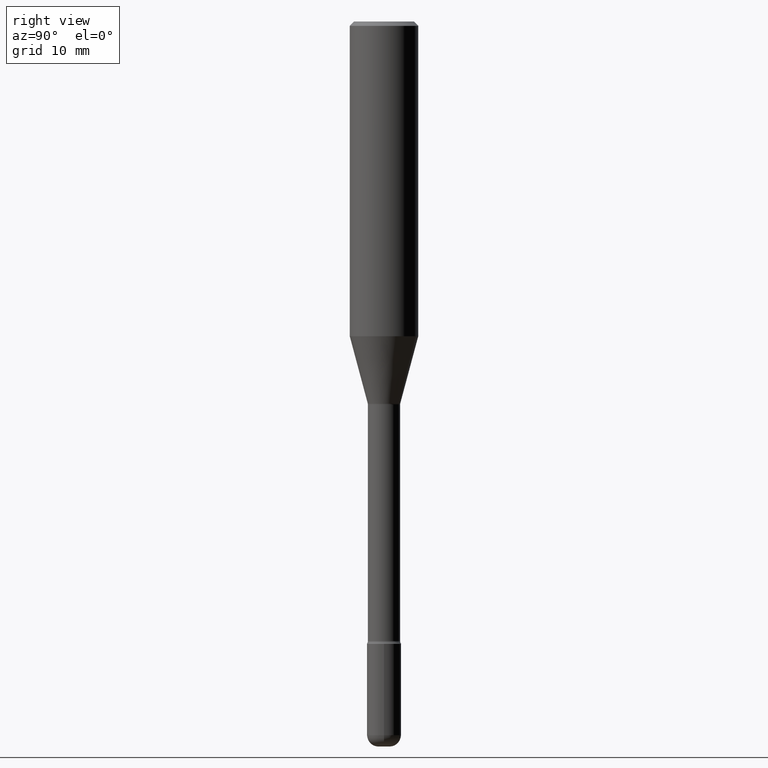
[diagram: clean part render]
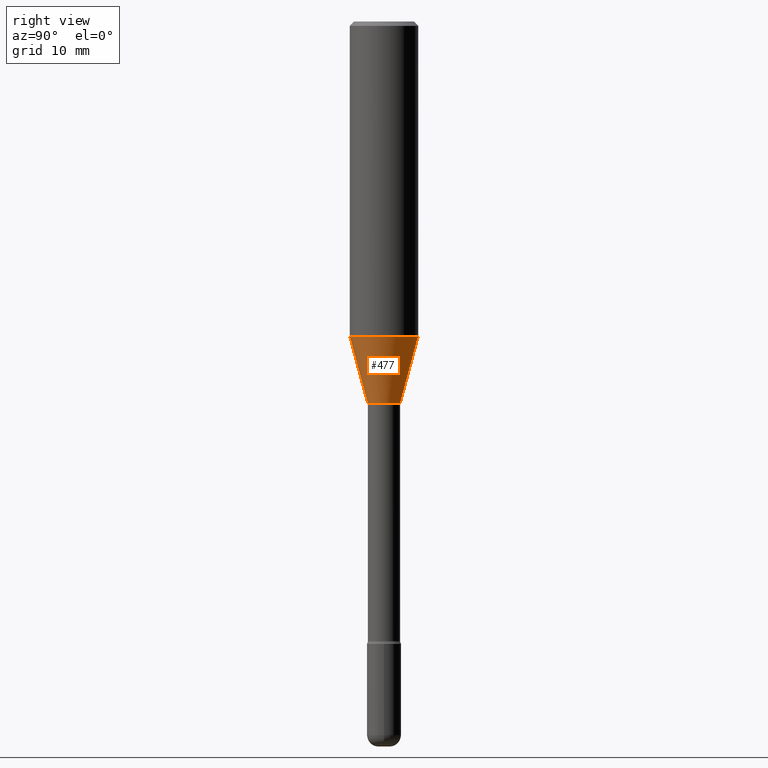
[diagram: same view with one face highlighted and labeled with its STEP entity id]
A machine part, right view. The second image highlights one B-rep face of the part: STEP entity #477.
In plain terms, the highlighted conical surface has half-angle 15 deg.
Its self-contained STEP definition (entity closure, byte-faithful):
#10 = ORIENTED_EDGE ( 'NONE', *, *, #204, .F. ) ;
#11 = VERTEX_POINT ( 'NONE', #143 ) ;
#24 = VERTEX_POINT ( 'NONE', #45 ) ;
#29 = EDGE_LOOP ( 'NONE', ( #546, #84, #10, #58 ) ) ;
#31 = DIRECTION ( 'NONE',  ( -6.982962677686265922E-15, -1.000000000000000000, 4.877332133888037765E-15 ) ) ;
#35 = DIRECTION ( 'NONE',  ( -2.445314574720221452E-29, 3.491702207079214016E-15, 1.000000000000000000 ) ) ;
#45 = CARTESIAN_POINT ( 'NONE',  ( -8.246878922347212441E-16, -0.1181000000000037714, -1.085273619446188276 ) ) ;
#58 = ORIENTED_EDGE ( 'NONE', *, *, #475, .F. ) ;
#67 = VECTOR ( 'NONE', #389, 39.37007874015748143 ) ;
#69 = CARTESIAN_POINT ( 'NONE',  ( 2.653835399191132044E-29, -3.789452292305104081E-15, -1.085273619446188720 ) ) ;
#82 = AXIS2_PLACEMENT_3D ( 'NONE', #125, #510, #31 ) ;
#84 = ORIENTED_EDGE ( 'NONE', *, *, #396, .T. ) ;
#125 = CARTESIAN_POINT ( 'NONE',  ( 3.220460959417665931E-29, -4.598545625197397204E-15, -1.316992501787273007 ) ) ;
#143 = CARTESIAN_POINT ( 'NONE',  ( 6.185669313853460208E-16, 0.05601111260565939248, -1.316992501787273229 ) ) ;
#173 = AXIS2_PLACEMENT_3D ( 'NONE', #434, #35, #565 ) ;
#188 = CARTESIAN_POINT ( 'NONE',  ( 8.391509709327049197E-16, 0.1180999999999962358, -1.085273619446189164 ) ) ;
#204 = EDGE_CURVE ( 'NONE', #24, #511, #503, .T. ) ;
#211 = DIRECTION ( 'NONE',  ( 1.839019923739597949E-15, 0.2588190451025246253, 0.9659258262890670910 ) ) ;
#212 = LINE ( 'NONE', #304, #67 ) ;
#283 = DIRECTION ( 'NONE',  ( -6.982962677686265922E-15, -1.000000000000000000, 3.469747663417777397E-15 ) ) ;
#297 = LINE ( 'NONE', #379, #393 ) ;
#304 = CARTESIAN_POINT ( 'NONE',  ( -3.911235088610021883E-16, -0.05601111260566859346, -1.316992501787272785 ) ) ;
#335 = CIRCLE ( 'NONE', #82, 0.05601111260566399297 ) ;
#379 = CARTESIAN_POINT ( 'NONE',  ( 3.979828918379874177E-16, 0.05601111260565939248, -1.316992501787273229 ) ) ;
#389 = DIRECTION ( 'NONE',  ( -1.807323732225328167E-15, -0.2588190451025179084, 0.9659258262890690894 ) ) ;
#393 = VECTOR ( 'NONE', #211, 39.37007874015748854 ) ;
#396 = EDGE_CURVE ( 'NONE', #11, #511, #297, .T. ) ;
#415 = AXIS2_PLACEMENT_3D ( 'NONE', #69, #537, #283 ) ;
#416 = CONICAL_SURFACE ( 'NONE', #173, 0.05601111260566399297, 0.2617993877991499629 ) ;
#432 = CARTESIAN_POINT ( 'NONE',  ( -3.911235088610021883E-16, -0.05601111260566859346, -1.316992501787272785 ) ) ;
#434 = CARTESIAN_POINT ( 'NONE',  ( 3.220460959417665931E-29, -4.598545625197397204E-15, -1.316992501787273007 ) ) ;
#466 = VERTEX_POINT ( 'NONE', #432 ) ;
#468 = EDGE_CURVE ( 'NONE', #466, #11, #335, .T. ) ;
#475 = EDGE_CURVE ( 'NONE', #466, #24, #212, .T. ) ;
#477 = ADVANCED_FACE ( 'NONE', ( #478 ), #416, .T. ) ;
#478 = FACE_OUTER_BOUND ( 'NONE', #29, .T. ) ;
#503 = CIRCLE ( 'NONE', #415, 0.1180999999999999966 ) ;
#510 = DIRECTION ( 'NONE',  ( -2.445314574720221452E-29, 3.491702207079214016E-15, 1.000000000000000000 ) ) ;
#511 = VERTEX_POINT ( 'NONE', #188 ) ;
#537 = DIRECTION ( 'NONE',  ( -2.445314574720221452E-29, 3.491702207079214016E-15, 1.000000000000000000 ) ) ;
#546 = ORIENTED_EDGE ( 'NONE', *, *, #468, .T. ) ;
#565 = DIRECTION ( 'NONE',  ( -6.982962677686265922E-15, -1.000000000000000000, 4.877332133888037765E-15 ) ) ;